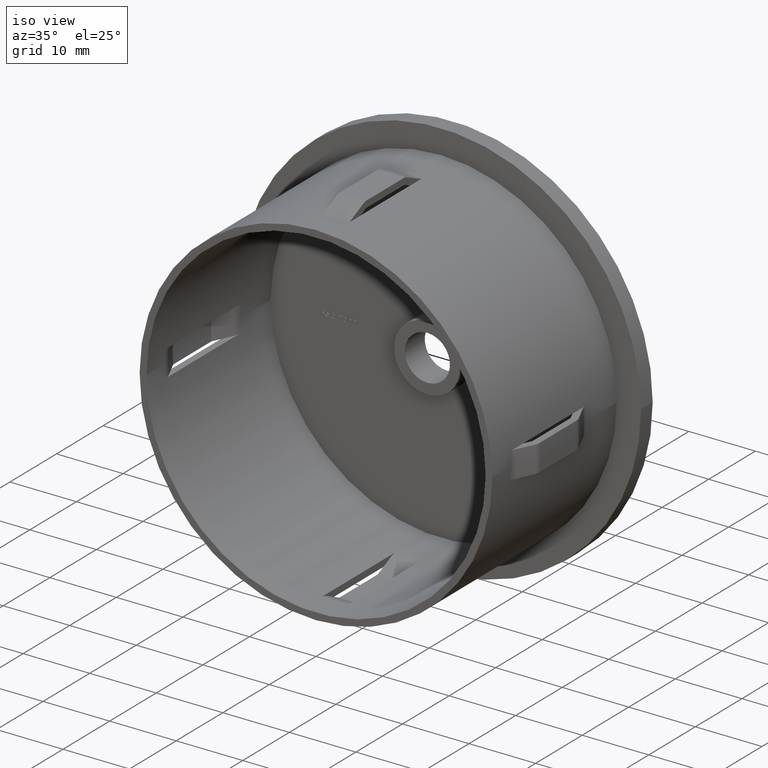
[diagram: clean part render]
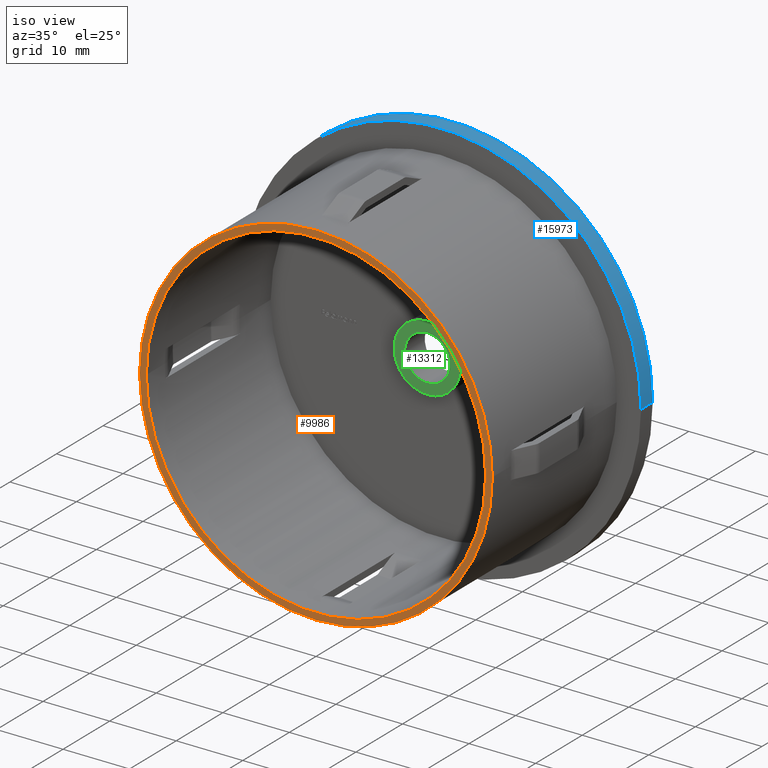
[diagram: same view with three faces highlighted in distinct colors, each labeled with its STEP entity id]
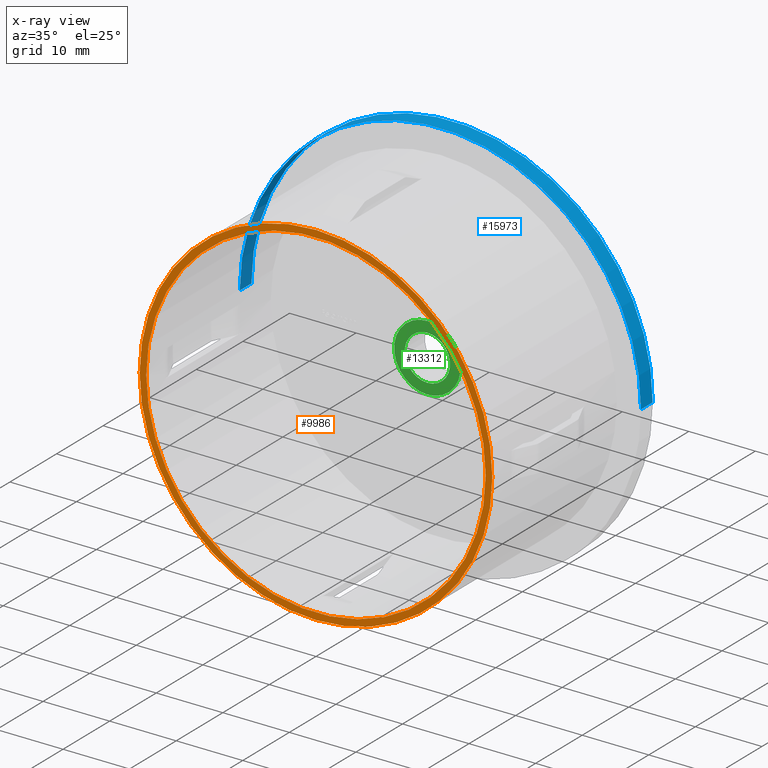
[diagram: x-ray of the same camera — body ghosted, the three highlighted faces saturated]
A machine part, iso view with three faces highlighted in distinct colors.
The next image is the same camera in x-ray (body ghosted, the three faces saturated) — at least one of them is partly hidden behind the body in this view.
Their STEP definitions:

[orange] entity #9986 — the highlighted planar face has unit normal (-0, 1, 0).
#46 = VERTEX_POINT ( 'NONE', #7485 ) ;
#525 = VERTEX_POINT ( 'NONE', #2761 ) ;
#527 = EDGE_CURVE ( 'NONE', #4867, #525, #15027, .T. ) ;
#571 = CARTESIAN_POINT ( 'NONE',  ( 3.453503973595536000E-015, -3.469446951953614200E-015, 0.0000000000000000000 ) ) ;
#1114 = CARTESIAN_POINT ( 'NONE',  ( 3.453503973595536000E-015, -3.469446951953614200E-015, 0.0000000000000000000 ) ) ;
#2346 = DIRECTION ( 'NONE',  ( -1.224646799147353200E-016, 1.000000000000000000, -0.0000000000000000000 ) ) ;
#2438 = CARTESIAN_POINT ( 'NONE',  ( 25.50000000000000400, -6.123233995736772200E-017, 0.0000000000000000000 ) ) ;
#2554 = DIRECTION ( 'NONE',  ( -1.224646799147353200E-016, 1.000000000000000000, -0.0000000000000000000 ) ) ;
#2749 = ORIENTED_EDGE ( 'NONE', *, *, #16269, .F. ) ;
#2761 = CARTESIAN_POINT ( 'NONE',  ( 25.50000000000000400, -3.465976141278638700E-016, 3.122849337825751000E-015 ) ) ;
#3326 = CIRCLE ( 'NONE', #12059, 25.50000000000000000 ) ;
#3675 = DIRECTION ( 'NONE',  ( -1.224646799147353200E-016, 1.000000000000000000, 0.0000000000000000000 ) ) ;
#3889 = VERTEX_POINT ( 'NONE', #9656 ) ;
#4867 = VERTEX_POINT ( 'NONE', #9930 ) ;
#5378 = FACE_OUTER_BOUND ( 'NONE', #9619, .T. ) ;
#6599 = DIRECTION ( 'NONE',  ( -1.224646799147353200E-016, 1.000000000000000000, -0.0000000000000000000 ) ) ;
#6600 = DIRECTION ( 'NONE',  ( -1.000000000000000000, -1.224646799147353200E-016, 0.0000000000000000000 ) ) ;
#7485 = CARTESIAN_POINT ( 'NONE',  ( 26.50000000000000400, -2.241329342131284200E-016, 3.245314017740486600E-015 ) ) ;
#7574 = AXIS2_PLACEMENT_3D ( 'NONE', #14188, #2554, #6600 ) ;
#7919 = CIRCLE ( 'NONE', #7574, 26.50000000000000000 ) ;
#8983 = DIRECTION ( 'NONE',  ( -1.000000000000000000, -1.224646799147353000E-016, 0.0000000000000000000 ) ) ;
#9619 = EDGE_LOOP ( 'NONE', ( #2749, #15366 ) ) ;
#9656 = CARTESIAN_POINT ( 'NONE',  ( -26.49999999999999600, -6.714760969694099600E-015, 0.0000000000000000000 ) ) ;
#9930 = CARTESIAN_POINT ( 'NONE',  ( -25.49999999999999600, -6.592296289779364400E-015, 0.0000000000000000000 ) ) ;
#9986 = ADVANCED_FACE ( 'NONE', ( #15890, #5378 ), #14967, .F. ) ;
#9996 = ORIENTED_EDGE ( 'NONE', *, *, #14878, .T. ) ;
#11330 = DIRECTION ( 'NONE',  ( -1.000000000000000000, -1.224646799147353200E-016, 0.0000000000000000000 ) ) ;
#12059 = AXIS2_PLACEMENT_3D ( 'NONE', #12751, #6599, #8983 ) ;
#12540 = CIRCLE ( 'NONE', #16186, 26.50000000000000000 ) ;
#12554 = AXIS2_PLACEMENT_3D ( 'NONE', #2438, #3675, #12655 ) ;
#12655 = DIRECTION ( 'NONE',  ( -1.000000000000000000, -1.224646799147353200E-016, 0.0000000000000000000 ) ) ;
#12751 = CARTESIAN_POINT ( 'NONE',  ( 3.453503973595536000E-015, -3.469446951953614200E-015, 0.0000000000000000000 ) ) ;
#12917 = EDGE_CURVE ( 'NONE', #46, #3889, #7919, .T. ) ;
#13807 = EDGE_LOOP ( 'NONE', ( #14206, #9996 ) ) ;
#14188 = CARTESIAN_POINT ( 'NONE',  ( 3.453503973595536000E-015, -3.469446951953614200E-015, 0.0000000000000000000 ) ) ;
#14206 = ORIENTED_EDGE ( 'NONE', *, *, #527, .T. ) ;
#14270 = DIRECTION ( 'NONE',  ( -1.000000000000000000, -1.224646799147353000E-016, 0.0000000000000000000 ) ) ;
#14317 = DIRECTION ( 'NONE',  ( -1.224646799147353200E-016, 1.000000000000000000, -0.0000000000000000000 ) ) ;
#14878 = EDGE_CURVE ( 'NONE', #525, #4867, #3326, .T. ) ;
#14967 = PLANE ( 'NONE',  #12554 ) ;
#15027 = CIRCLE ( 'NONE', #15639, 25.50000000000000000 ) ;
#15366 = ORIENTED_EDGE ( 'NONE', *, *, #12917, .F. ) ;
#15639 = AXIS2_PLACEMENT_3D ( 'NONE', #571, #14317, #14270 ) ;
#15890 = FACE_BOUND ( 'NONE', #13807, .T. ) ;
#16186 = AXIS2_PLACEMENT_3D ( 'NONE', #1114, #2346, #11330 ) ;
#16269 = EDGE_CURVE ( 'NONE', #3889, #46, #12540, .T. ) ;

[blue] entity #15973 — the highlighted cylindrical surface (partial cylindrical patch) has radius 30.15 mm, axis along (-0, 1, -0).
#209 = EDGE_CURVE ( 'NONE', #12961, #5999, #1942, .T. ) ;
#785 = CARTESIAN_POINT ( 'NONE',  ( -1.224646799147349800E-016, 29.19999999999999600, 0.0000000000000000000 ) ) ;
#1035 = ORIENTED_EDGE ( 'NONE', *, *, #209, .T. ) ;
#1821 = VERTEX_POINT ( 'NONE', #14262 ) ;
#1942 = LINE ( 'NONE', #11956, #14037 ) ;
#2892 = VERTEX_POINT ( 'NONE', #8832 ) ;
#3308 = EDGE_LOOP ( 'NONE', ( #3860, #1035, #6824, #5092 ) ) ;
#3860 = ORIENTED_EDGE ( 'NONE', *, *, #9328, .T. ) ;
#5092 = ORIENTED_EDGE ( 'NONE', *, *, #8639, .F. ) ;
#5362 = AXIS2_PLACEMENT_3D ( 'NONE', #13871, #7495, #9978 ) ;
#5599 = VECTOR ( 'NONE', #12011, 1000.000000000000000 ) ;
#5839 = DIRECTION ( 'NONE',  ( -1.000000000000000000, -1.150728673948130800E-016, 0.0000000000000000000 ) ) ;
#5999 = VERTEX_POINT ( 'NONE', #8393 ) ;
#6307 = AXIS2_PLACEMENT_3D ( 'NONE', #785, #7288, #5839 ) ;
#6363 = CIRCLE ( 'NONE', #6307, 30.14999999999999900 ) ;
#6808 = LINE ( 'NONE', #11947, #5599 ) ;
#6824 = ORIENTED_EDGE ( 'NONE', *, *, #11075, .F. ) ;
#6986 = CIRCLE ( 'NONE', #8395, 30.14999999999999500 ) ;
#7288 = DIRECTION ( 'NONE',  ( -1.224646799147353200E-016, 1.000000000000000000, -0.0000000000000000000 ) ) ;
#7495 = DIRECTION ( 'NONE',  ( -1.224646799147353200E-016, 1.000000000000000000, -0.0000000000000000000 ) ) ;
#8232 = DIRECTION ( 'NONE',  ( -1.224646799147353200E-016, 1.000000000000000000, -0.0000000000000000000 ) ) ;
#8393 = CARTESIAN_POINT ( 'NONE',  ( 30.15000000000000200, 29.19999999999999900, 3.692310099429270400E-015 ) ) ;
#8395 = AXIS2_PLACEMENT_3D ( 'NONE', #13184, #8232, #13294 ) ;
#8639 = EDGE_CURVE ( 'NONE', #2892, #1821, #6808, .T. ) ;
#8832 = CARTESIAN_POINT ( 'NONE',  ( -30.14999999999999500, 26.69999999999999600, 0.0000000000000000000 ) ) ;
#9328 = EDGE_CURVE ( 'NONE', #2892, #12961, #6986, .T. ) ;
#9978 = DIRECTION ( 'NONE',  ( -1.000000000000000000, -1.150728673948131100E-016, 0.0000000000000000000 ) ) ;
#10450 = CYLINDRICAL_SURFACE ( 'NONE', #5362, 30.14999999999999500 ) ;
#11075 = EDGE_CURVE ( 'NONE', #1821, #5999, #6363, .T. ) ;
#11432 = CARTESIAN_POINT ( 'NONE',  ( 30.14999999999999500, 26.70000000000000300, 3.692310099429269600E-015 ) ) ;
#11947 = CARTESIAN_POINT ( 'NONE',  ( -30.14999999999999500, 29.19999999999999600, 0.0000000000000000000 ) ) ;
#11956 = CARTESIAN_POINT ( 'NONE',  ( 30.14999999999999500, 29.20000000000000300, 3.692310099429269600E-015 ) ) ;
#12011 = DIRECTION ( 'NONE',  ( -1.224646799147353200E-016, 1.000000000000000000, -0.0000000000000000000 ) ) ;
#12961 = VERTEX_POINT ( 'NONE', #11432 ) ;
#13184 = CARTESIAN_POINT ( 'NONE',  ( 1.836970198721031900E-016, 26.69999999999999900, 0.0000000000000000000 ) ) ;
#13294 = DIRECTION ( 'NONE',  ( -1.000000000000000000, -1.150728673948131100E-016, 0.0000000000000000000 ) ) ;
#13871 = CARTESIAN_POINT ( 'NONE',  ( -1.224646799147354400E-016, 29.19999999999999900, 0.0000000000000000000 ) ) ;
#14023 = FACE_OUTER_BOUND ( 'NONE', #3308, .T. ) ;
#14037 = VECTOR ( 'NONE', #14930, 1000.000000000000000 ) ;
#14262 = CARTESIAN_POINT ( 'NONE',  ( -30.14999999999999900, 29.19999999999999200, 0.0000000000000000000 ) ) ;
#14930 = DIRECTION ( 'NONE',  ( -1.224646799147353200E-016, 1.000000000000000000, -0.0000000000000000000 ) ) ;
#15973 = ADVANCED_FACE ( 'NONE', ( #14023 ), #10450, .T. ) ;

[green] entity #13312 — the highlighted planar face has unit normal (0, -1, 0).
#353 = AXIS2_PLACEMENT_3D ( 'NONE', #16016, #12423, #13650 ) ;
#441 = AXIS2_PLACEMENT_3D ( 'NONE', #13956, #14114, #6373 ) ;
#1361 = CARTESIAN_POINT ( 'NONE',  ( -3.269806953723432900E-015, 23.90000000000000200, 0.0000000000000000000 ) ) ;
#1453 = CIRCLE ( 'NONE', #441, 5.000000000000000000 ) ;
#1673 = VERTEX_POINT ( 'NONE', #8513 ) ;
#2382 = EDGE_CURVE ( 'NONE', #11645, #15170, #1453, .T. ) ;
#2471 = EDGE_LOOP ( 'NONE', ( #10195, #14971 ) ) ;
#2647 = PLANE ( 'NONE',  #7900 ) ;
#3013 = CIRCLE ( 'NONE', #11716, 3.399999999999989700 ) ;
#3070 = EDGE_LOOP ( 'NONE', ( #14939, #11980 ) ) ;
#3118 = DIRECTION ( 'NONE',  ( 0.0000000000000000000, 0.0000000000000000000, -1.000000000000000000 ) ) ;
#3760 = FACE_BOUND ( 'NONE', #2471, .T. ) ;
#5869 = DIRECTION ( 'NONE',  ( 0.0000000000000000000, -1.000000000000000000, 0.0000000000000000000 ) ) ;
#6114 = CARTESIAN_POINT ( 'NONE',  ( -3.269806953723432900E-015, 23.90000000000000200, 5.000000000000000000 ) ) ;
#6373 = DIRECTION ( 'NONE',  ( 0.0000000000000000000, 0.0000000000000000000, -1.000000000000000000 ) ) ;
#6520 = EDGE_CURVE ( 'NONE', #15170, #11645, #15734, .T. ) ;
#7148 = DIRECTION ( 'NONE',  ( 0.0000000000000000000, 0.0000000000000000000, -1.000000000000000000 ) ) ;
#7340 = AXIS2_PLACEMENT_3D ( 'NONE', #14668, #5869, #7148 ) ;
#7747 = DIRECTION ( 'NONE',  ( 0.0000000000000000000, -1.000000000000000000, 0.0000000000000000000 ) ) ;
#7857 = DIRECTION ( 'NONE',  ( 0.0000000000000000000, -0.0000000000000000000, -1.000000000000000000 ) ) ;
#7900 = AXIS2_PLACEMENT_3D ( 'NONE', #1361, #7747, #7857 ) ;
#8141 = CARTESIAN_POINT ( 'NONE',  ( 0.0000000000000000000, 23.90000000000000200, 0.0000000000000000000 ) ) ;
#8513 = CARTESIAN_POINT ( 'NONE',  ( 4.163799117100988200E-016, 23.90000000000000200, 3.399999999999989300 ) ) ;
#9158 = CARTESIAN_POINT ( 'NONE',  ( 0.0000000000000000000, 23.90000000000000200, -3.399999999999989700 ) ) ;
#10195 = ORIENTED_EDGE ( 'NONE', *, *, #14649, .F. ) ;
#10729 = EDGE_CURVE ( 'NONE', #1673, #11386, #3013, .T. ) ;
#10879 = CIRCLE ( 'NONE', #353, 3.399999999999989700 ) ;
#11386 = VERTEX_POINT ( 'NONE', #9158 ) ;
#11645 = VERTEX_POINT ( 'NONE', #6114 ) ;
#11716 = AXIS2_PLACEMENT_3D ( 'NONE', #8141, #14557, #3118 ) ;
#11980 = ORIENTED_EDGE ( 'NONE', *, *, #6520, .T. ) ;
#12423 = DIRECTION ( 'NONE',  ( -0.0000000000000000000, -1.000000000000000000, -0.0000000000000000000 ) ) ;
#12683 = FACE_OUTER_BOUND ( 'NONE', #3070, .T. ) ;
#13312 = ADVANCED_FACE ( 'NONE', ( #3760, #12683 ), #2647, .T. ) ;
#13650 = DIRECTION ( 'NONE',  ( 0.0000000000000000000, 0.0000000000000000000, -1.000000000000000000 ) ) ;
#13852 = CARTESIAN_POINT ( 'NONE',  ( -2.657483554149756300E-015, 23.90000000000000200, -5.000000000000000000 ) ) ;
#13956 = CARTESIAN_POINT ( 'NONE',  ( -3.269806953723432900E-015, 23.90000000000000200, 0.0000000000000000000 ) ) ;
#14114 = DIRECTION ( 'NONE',  ( 0.0000000000000000000, -1.000000000000000000, 0.0000000000000000000 ) ) ;
#14557 = DIRECTION ( 'NONE',  ( -0.0000000000000000000, -1.000000000000000000, -0.0000000000000000000 ) ) ;
#14649 = EDGE_CURVE ( 'NONE', #11386, #1673, #10879, .T. ) ;
#14668 = CARTESIAN_POINT ( 'NONE',  ( -3.269806953723432900E-015, 23.90000000000000200, 0.0000000000000000000 ) ) ;
#14939 = ORIENTED_EDGE ( 'NONE', *, *, #2382, .T. ) ;
#14971 = ORIENTED_EDGE ( 'NONE', *, *, #10729, .F. ) ;
#15170 = VERTEX_POINT ( 'NONE', #13852 ) ;
#15734 = CIRCLE ( 'NONE', #7340, 5.000000000000000000 ) ;
#16016 = CARTESIAN_POINT ( 'NONE',  ( 0.0000000000000000000, 23.90000000000000200, 0.0000000000000000000 ) ) ;